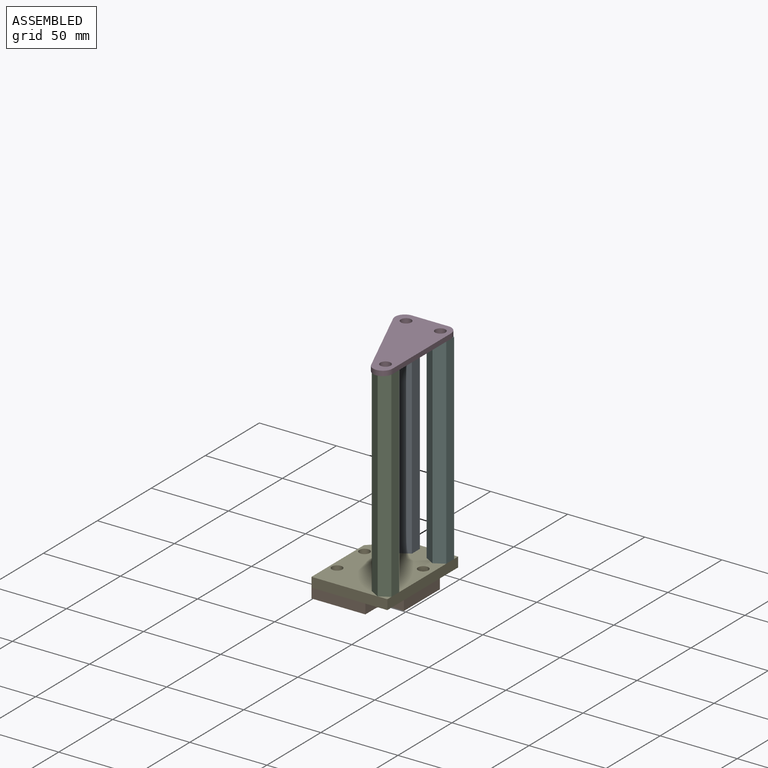
[diagram: assembled view]
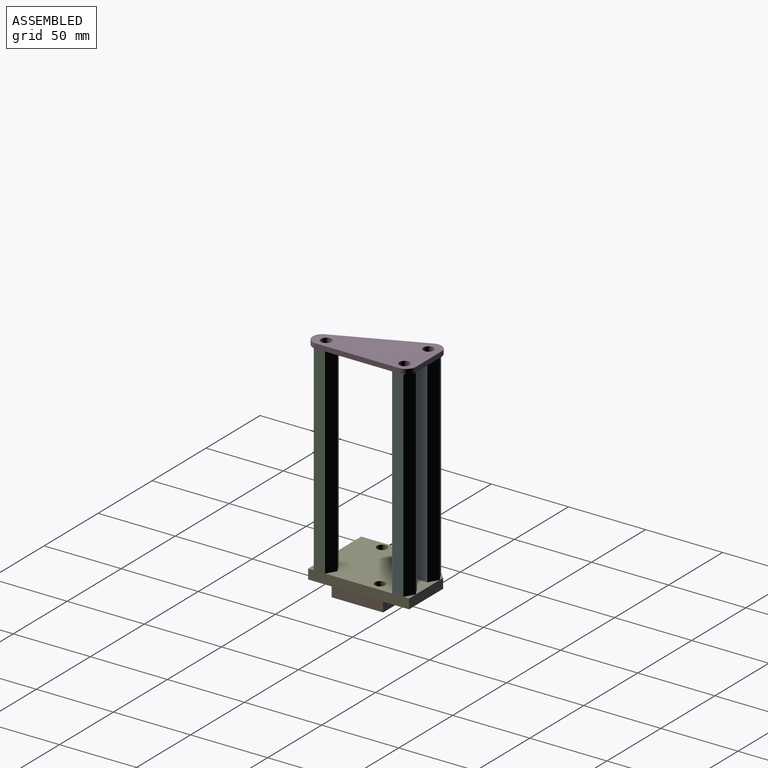
[diagram: assembled view, second angle]
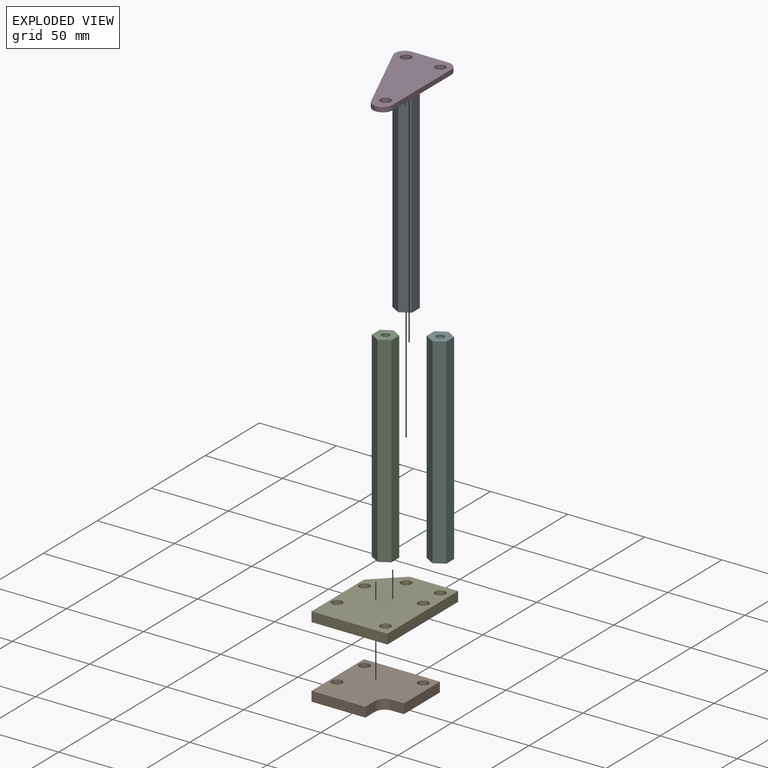
[diagram: exploded view]
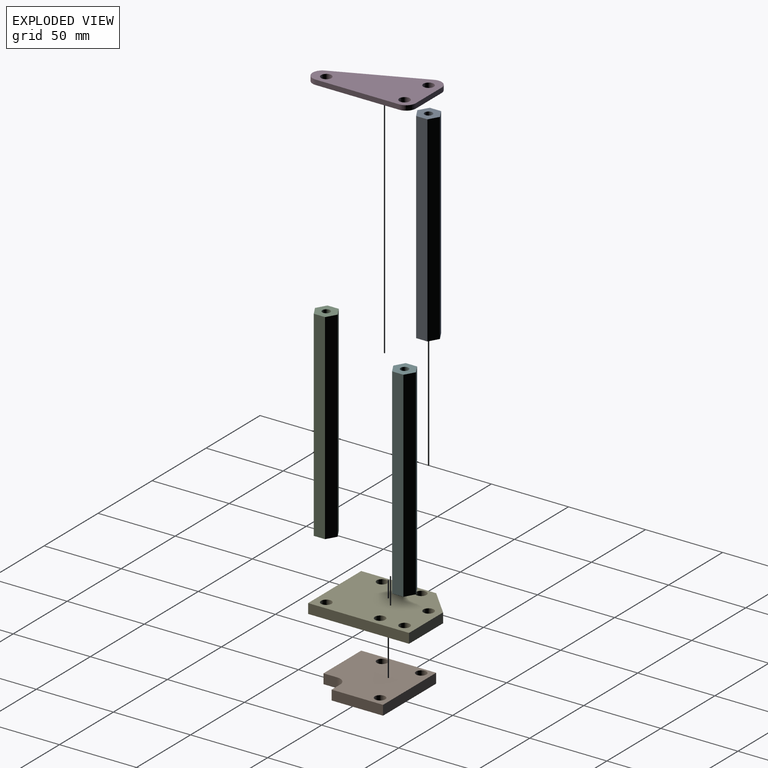
[diagram: exploded view, second angle]
ASSEMBLY  parts=6 mates=5
PART A: 9 faces, bbox 12.7x14.7x130.2 mm
  f0: plane 130.18x6.35mm, normal (0.5,-0.87,0), area 954.5mm2, adj f1,f5,f7,f8
  f1: plane 130.18x7.33mm, normal (1,0,0), area 954.5mm2, adj f0,f2,f7,f8
  f2: plane 130.18x6.35mm, normal (0.5,0.87,0), area 954.5mm2, adj f1,f3,f7,f8
  f3: plane 130.18x6.35mm, normal (-0.5,0.87,0), area 954.5mm2, adj f2,f4,f7,f8
  f4: plane 130.18x7.33mm, normal (-1,0,0), area 954.5mm2, adj f3,f5,f7,f8
  f5: plane 130.18x6.35mm, normal (-0.5,-0.87,0), area 954.5mm2, adj f0,f4,f7,f8
  f6: cylinder r=2.55mm len=130.18mm, axis (0,0,-1), area 2087.9mm2, adj f7,f8
  f7: plane 14.66x12.7mm, normal (0,0,1), area 119.2mm2, adj f0,f1,f2,f3,f4,f5,f6
  f8: plane 14.66x12.7mm, normal (0,0,-1), area 119.2mm2, adj f0,f1,f2,f3,f4,f5,f6
PART B: 12 faces, bbox 49.2x48.6x6.4 mm
  f0: plane 8.93x6.35mm, normal (-1,0,0), area 56.7mm2, adj f1,f6,f7,f8
  f1: cylinder r=6.35mm len=6.35mm, axis (0,0,-1), area 63.3mm2, adj f0,f2,f7,f8
  f2: plane 7.94x6.35mm, normal (0,-1,0), area 50.4mm2, adj f1,f3,f7,f8
  f3: plane 33.34x6.35mm, normal (-1,0,0), area 211.7mm2, adj f2,f4,f7,f8
  f4: plane 49.21x6.35mm, normal (0,1,0), area 312.5mm2, adj f3,f5,f7,f8
  f5: plane 48.62x6.35mm, normal (1,0,0), area 308.7mm2, adj f4,f6,f7,f8
  f6: plane 34.93x6.35mm, normal (0,-1,0), area 221.8mm2, adj f0,f5,f7,f8
  f7: plane 49.21x48.62mm, normal (0,0,1), area 2075.3mm2, adj f0,f1,f2,f3,f4,f5,f6,f9
  f8: plane 49.21x48.62mm, normal (0,0,-1), area 2075.3mm2, adj f0,f1,f2,f3,f4,f5,f6,f9
  f9: cylinder r=3.38mm len=6.76mm, axis (0,0,1), area 134.8mm2, adj f7,f8
  f10: cylinder r=3.38mm len=6.76mm, axis (0,0,1), area 134.8mm2, adj f7,f8
  f11: cylinder r=3.38mm len=6.76mm, axis (0,0,1), area 134.8mm2, adj f7,f8
PART C: same geometry as A
PART D: 11 faces, bbox 36.4x67x3.2 mm
  f0: plane 54.26x3.18mm, normal (1,0,0), area 172.3mm2, adj f1,f5,f6,f7
  f1: cylinder r=6.35mm len=6.35mm, axis (0,0,-1), area 31.7mm2, adj f0,f2,f6,f7
  f2: plane 23.74x3.18mm, normal (0,1,0), area 75.4mm2, adj f1,f3,f6,f7
  f3: cylinder r=6.35mm len=8.9mm, axis (0,0,-1), area 40mm2, adj f2,f4,f6,f7
  f4: plane 54.26x23.74mm, normal (-0.92,-0.4,0), area 188mm2, adj f3,f5,f6,f7
  f5: cylinder r=6.35mm len=12.17mm, axis (0,0,-1), area 55mm2, adj f0,f4,f6,f7
  f6: plane 66.96x36.44mm, normal (0,0,1), area 1534.6mm2, adj f0,f1,f2,f3,f4,f5,f8,f9
  f7: plane 66.96x36.44mm, normal (0,0,-1), area 1534.6mm2, adj f0,f1,f2,f3,f4,f5,f8,f9
  f8: cylinder r=3.38mm len=6.76mm, axis (0,0,-1), area 67.4mm2, adj f6,f7
  f9: cylinder r=3.38mm len=6.76mm, axis (0,0,-1), area 67.4mm2, adj f6,f7
  f10: cylinder r=3.38mm len=6.76mm, axis (0,0,-1), area 67.4mm2, adj f6,f7
PART E: 13 faces, bbox 49.2x65.5x6.4 mm
  f0: plane 17.7x16.87mm, normal (0.69,0.72,0), area 155.3mm2, adj f1,f4,f5,f6
  f1: plane 48.62x6.35mm, normal (1,0,0), area 308.7mm2, adj f0,f2,f5,f6
  f2: plane 49.21x6.35mm, normal (0,-1,0), area 312.5mm2, adj f1,f3,f5,f6
  f3: plane 65.48x6.35mm, normal (-1,0,0), area 415.8mm2, adj f2,f4,f5,f6
  f4: plane 31.51x6.35mm, normal (0,1,0), area 200.1mm2, adj f0,f3,f5,f6
  f5: plane 65.48x49.21mm, normal (0,0,-1), area 2858.1mm2, adj f0,f1,f2,f3,f4,f7,f8,f9
  f6: plane 65.48x49.21mm, normal (0,0,1), area 2858.1mm2, adj f0,f1,f2,f3,f4,f7,f8,f9
  f7: cylinder r=3.38mm len=6.76mm, axis (0,0,1), area 134.8mm2, adj f5,f6
  f8: cylinder r=3.38mm len=6.76mm, axis (0,0,1), area 134.8mm2, adj f5,f6
  f9: cylinder r=3.38mm len=6.76mm, axis (0,0,1), area 134.8mm2, adj f5,f6
  f10: cylinder r=3.38mm len=6.76mm, axis (0,0,1), area 134.8mm2, adj f5,f6
  f11: cylinder r=3.38mm len=6.76mm, axis (0,0,1), area 134.8mm2, adj f5,f6
  f12: cylinder r=3.38mm len=6.76mm, axis (0,0,1), area 134.8mm2, adj f5,f6
PART F: same geometry as A
PLACE A t=(-2.55,32.62,12.7)mm
PLACE B rot(axis=(0,1,0),180deg) t=(45.07,-43.58,6.35)mm
PLACE C t=(19.67,-18.18,12.7)mm
PLACE D t=(45.07,-43.58,142.88)mm
PLACE E rot(axis=(0,1,0),180deg) t=(45.07,-43.58,6.35)mm
PLACE F t=(19.67,32.62,12.7)mm
MATE fastened C.f6 <-> E.f7  axis (0,0,-1) through (19.67,-18.18,12.7)mm
MATE fastened F.f6 <-> E.f12  axis (0,0,-1) through (19.67,32.62,12.7)mm
MATE fastened D.f10 <-> C.f6  axis (0,0,-1) through (19.67,-18.18,142.88)mm
MATE fastened A.f6 <-> E.f11  axis (0,0,-1) through (-2.55,32.62,12.7)mm
MATE fastened E.f6 <-> B.f8  axis (0,0,-1) through (-23.19,-25.53,6.35)mm
